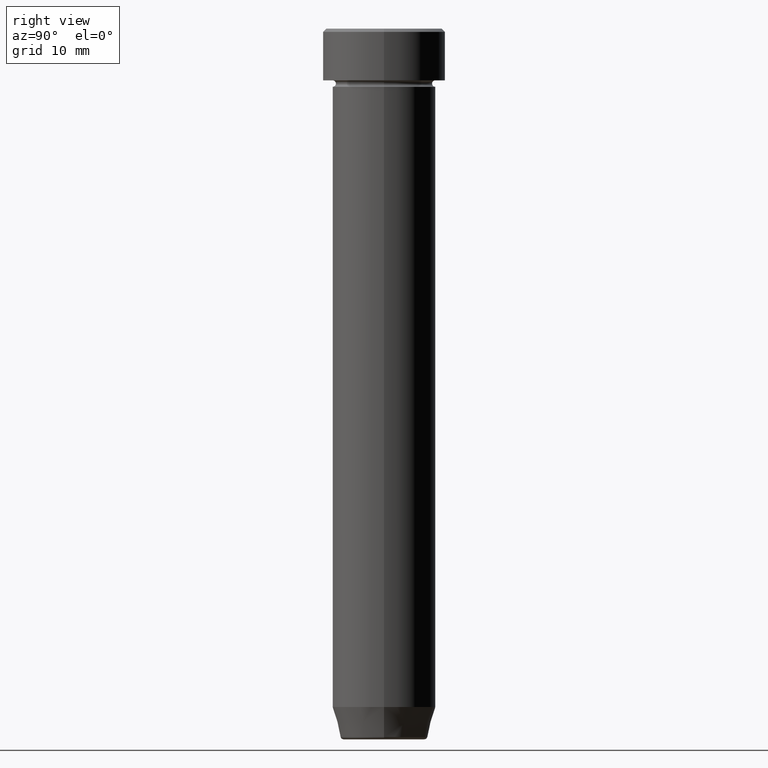
[diagram: clean part render]
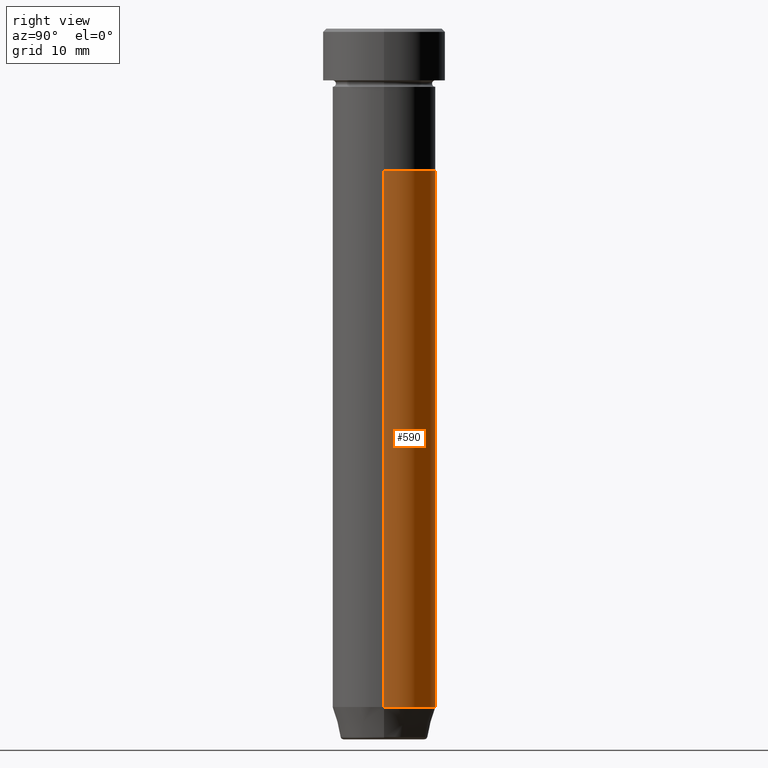
[diagram: same view with one face highlighted and labeled with its STEP entity id]
A machine part, right view. The second image highlights one B-rep face of the part: STEP entity #590.
In plain terms, the highlighted cylindrical surface (partial cylindrical patch) has radius 8 mm, axis along (-0, -0, 1).
Its self-contained STEP definition (entity closure, byte-faithful):
#2 = EDGE_CURVE ( 'NONE', #389, #199, #178, .T. ) ;
#12 = VERTEX_POINT ( 'NONE', #581 ) ;
#24 = VECTOR ( 'NONE', #391, 1000.000000000000000 ) ;
#38 = EDGE_CURVE ( 'NONE', #12, #199, #73, .T. ) ;
#53 = VERTEX_POINT ( 'NONE', #300 ) ;
#56 = EDGE_LOOP ( 'NONE', ( #228, #165, #569, #492 ) ) ;
#68 = LINE ( 'NONE', #166, #242 ) ;
#73 = CIRCLE ( 'NONE', #465, 8.000000000000000000 ) ;
#91 = DIRECTION ( 'NONE',  ( -0.000000000000000000, -0.000000000000000000, 1.000000000000000000 ) ) ;
#114 = AXIS2_PLACEMENT_3D ( 'NONE', #413, #179, #546 ) ;
#150 = DIRECTION ( 'NONE',  ( 1.000000000000000000, 0.000000000000000000, 0.000000000000000000 ) ) ;
#165 = ORIENTED_EDGE ( 'NONE', *, *, #2, .T. ) ;
#166 = CARTESIAN_POINT ( 'NONE',  ( 8.000000000000000000, 0.000000000000000000, 0.000000000000000000 ) ) ;
#168 = AXIS2_PLACEMENT_3D ( 'NONE', #556, #91, #150 ) ;
#178 = LINE ( 'NONE', #541, #24 ) ;
#179 = DIRECTION ( 'NONE',  ( -0.000000000000000000, -0.000000000000000000, 1.000000000000000000 ) ) ;
#185 = CARTESIAN_POINT ( 'NONE',  ( -8.000000000000000000, 9.797174393178825657E-16, -22.00000000000000000 ) ) ;
#199 = VERTEX_POINT ( 'NONE', #185 ) ;
#228 = ORIENTED_EDGE ( 'NONE', *, *, #347, .T. ) ;
#233 = FACE_OUTER_BOUND ( 'NONE', #56, .T. ) ;
#242 = VECTOR ( 'NONE', #526, 1000.000000000000000 ) ;
#259 = DIRECTION ( 'NONE',  ( 1.000000000000000000, 0.000000000000000000, 0.000000000000000000 ) ) ;
#300 = CARTESIAN_POINT ( 'NONE',  ( 8.000000000000000000, 0.000000000000000000, -104.9999999999999858 ) ) ;
#305 = CARTESIAN_POINT ( 'NONE',  ( 0.000000000000000000, 0.000000000000000000, -22.00000000000000000 ) ) ;
#317 = CYLINDRICAL_SURFACE ( 'NONE', #114, 8.000000000000000000 ) ;
#330 = CIRCLE ( 'NONE', #168, 8.000000000000000000 ) ;
#347 = EDGE_CURVE ( 'NONE', #53, #389, #330, .T. ) ;
#357 = CARTESIAN_POINT ( 'NONE',  ( -8.000000000000000000, 9.797174393178825657E-16, -104.9999999999999858 ) ) ;
#389 = VERTEX_POINT ( 'NONE', #357 ) ;
#391 = DIRECTION ( 'NONE',  ( -0.000000000000000000, -0.000000000000000000, 1.000000000000000000 ) ) ;
#413 = CARTESIAN_POINT ( 'NONE',  ( 0.000000000000000000, 0.000000000000000000, 0.000000000000000000 ) ) ;
#433 = EDGE_CURVE ( 'NONE', #53, #12, #68, .T. ) ;
#465 = AXIS2_PLACEMENT_3D ( 'NONE', #305, #535, #259 ) ;
#492 = ORIENTED_EDGE ( 'NONE', *, *, #433, .F. ) ;
#526 = DIRECTION ( 'NONE',  ( -0.000000000000000000, -0.000000000000000000, 1.000000000000000000 ) ) ;
#535 = DIRECTION ( 'NONE',  ( -0.000000000000000000, -0.000000000000000000, 1.000000000000000000 ) ) ;
#541 = CARTESIAN_POINT ( 'NONE',  ( -8.000000000000000000, 9.797174393178825657E-16, 0.000000000000000000 ) ) ;
#546 = DIRECTION ( 'NONE',  ( 1.000000000000000000, 0.000000000000000000, 0.000000000000000000 ) ) ;
#556 = CARTESIAN_POINT ( 'NONE',  ( 0.000000000000000000, 0.000000000000000000, -104.9999999999999858 ) ) ;
#569 = ORIENTED_EDGE ( 'NONE', *, *, #38, .F. ) ;
#581 = CARTESIAN_POINT ( 'NONE',  ( 8.000000000000000000, 0.000000000000000000, -22.00000000000000000 ) ) ;
#590 = ADVANCED_FACE ( 'NONE', ( #233 ), #317, .T. ) ;